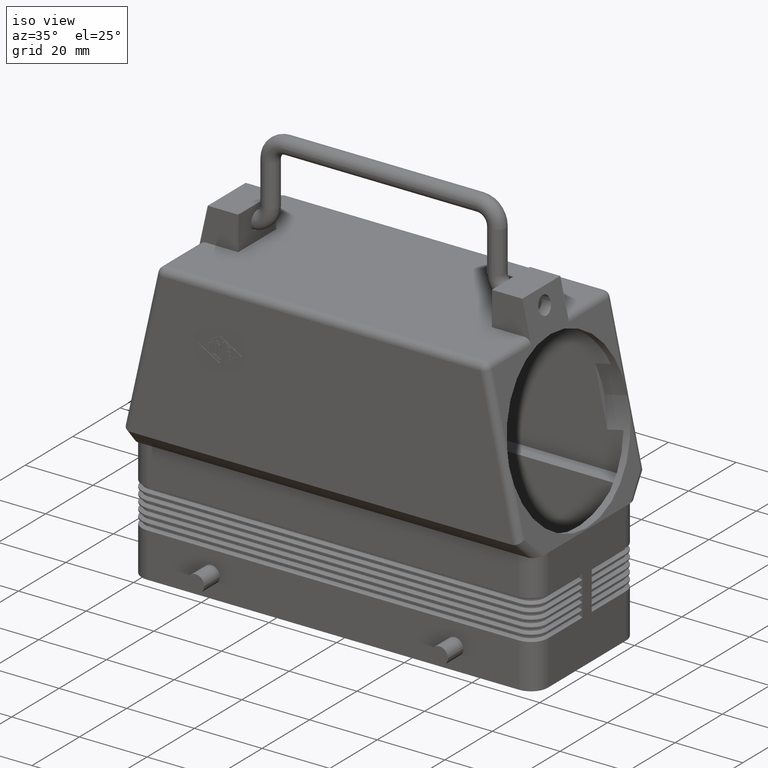
[diagram: clean part render]
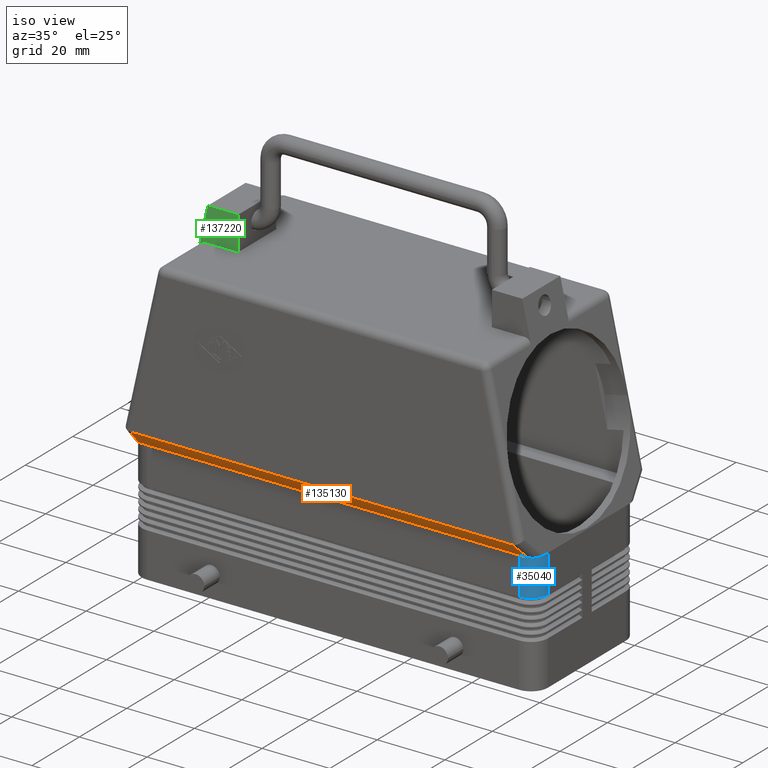
[diagram: same view with three faces highlighted in distinct colors, each labeled with its STEP entity id]
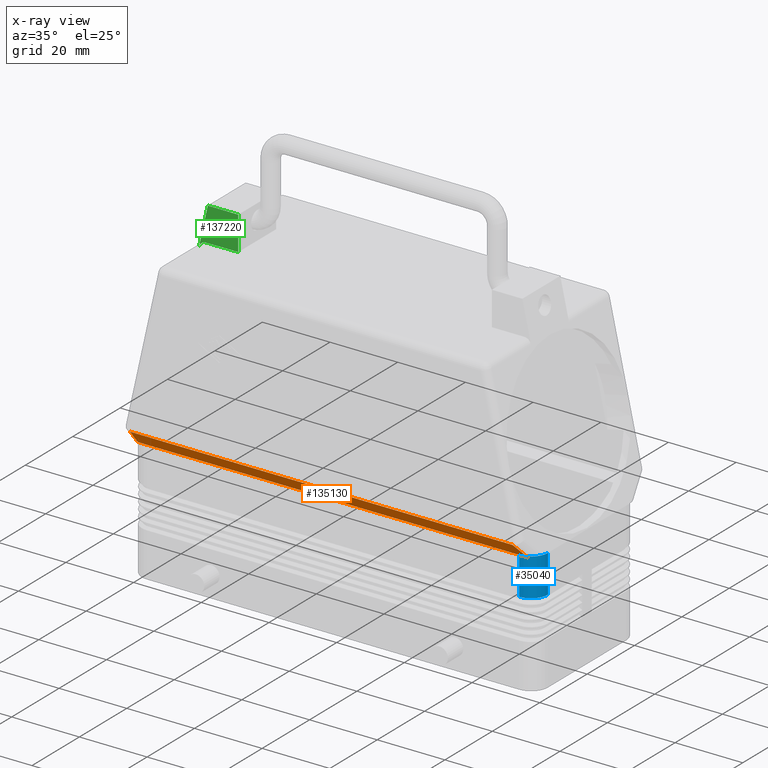
[diagram: x-ray of the same camera — body ghosted, the three highlighted faces saturated]
A machine part, iso view with three faces highlighted in distinct colors.
The next image is the same camera in x-ray (body ghosted, the three faces saturated) — at least one of them is partly hidden behind the body in this view.
Their STEP definitions:

[orange] entity #135130 — the highlighted planar face has unit normal (-0, -0.7071, -0.7071).
#7950=CARTESIAN_POINT('',(-56.5294440595409,-26.5,41.));
#7960=VERTEX_POINT('',#7950);
#8010=CARTESIAN_POINT('',(-57.6379173727556,-21.5,36.));
#8020=DIRECTION('',(0.154870435200398,-0.698575389024276,
0.698575389024277));
#8030=VECTOR('',#8020,7.15742363466836);
#8040=LINE('',#8010,#8030);
#8050=CARTESIAN_POINT('',(-57.6379173727556,-21.5,36.));
#8060=VERTEX_POINT('',#8050);
#8070=EDGE_CURVE('',#8060,#7960,#8040,.T.);
#12720=CARTESIAN_POINT('',(56.5294440595409,-26.5,41.));
#12730=DIRECTION('',(0.154870435200397,0.698575389024276,
-0.698575389024277));
#12740=VECTOR('',#12730,7.15742363466836);
#12750=LINE('',#12720,#12740);
#12760=CARTESIAN_POINT('',(56.5294440595409,-26.5,41.));
#12770=VERTEX_POINT('',#12760);
#12780=CARTESIAN_POINT('',(57.6379173727556,-21.5,36.));
#12790=VERTEX_POINT('',#12780);
#12800=EDGE_CURVE('',#12770,#12790,#12750,.T.);
#33850=CARTESIAN_POINT('',(-55.,-21.5,36.));
#33860=VERTEX_POINT('',#33850);
#34910=CARTESIAN_POINT('',(55.,-21.5,36.));
#34920=VERTEX_POINT('',#34910);
#53810=CARTESIAN_POINT('',(56.5294440595409,-26.5,41.));
#53820=DIRECTION('',(-1.,0.,0.));
#53830=VECTOR('',#53820,113.058888119082);
#53840=LINE('',#53810,#53830);
#53850=EDGE_CURVE('',#12770,#7960,#53840,.T.);
#60420=CARTESIAN_POINT('',(-55.,-21.5,36.));
#60430=DIRECTION('',(1.,0.,0.));
#60440=VECTOR('',#60430,110.);
#60450=LINE('',#60420,#60440);
#60460=EDGE_CURVE('',#33860,#34920,#60450,.T.);
#77030=CARTESIAN_POINT('',(55.,-21.5,36.));
#77040=DIRECTION('',(1.,0.,0.));
#77050=VECTOR('',#77040,2.6379173727556);
#77060=LINE('',#77030,#77050);
#77070=EDGE_CURVE('',#34920,#12790,#77060,.T.);
#134950=CARTESIAN_POINT('',(-30.,-24.,38.5));
#134960=DIRECTION('',(-0.,-0.707106781186548,-0.707106781186547));
#134970=DIRECTION('',(-1.,0.,0.));
#134980=AXIS2_PLACEMENT_3D('',#134950,#134960,#134970);
#134990=PLANE('',#134980);
#135000=ORIENTED_EDGE('',*,*,#53850,.T.);
#135010=ORIENTED_EDGE('',*,*,#12800,.F.);
#135020=ORIENTED_EDGE('',*,*,#77070,.T.);
#135030=ORIENTED_EDGE('',*,*,#60460,.T.);
#135040=CARTESIAN_POINT('',(-57.6379173727556,-21.5,36.));
#135050=DIRECTION('',(1.,0.,0.));
#135060=VECTOR('',#135050,2.63791737275562);
#135070=LINE('',#135040,#135060);
#135080=EDGE_CURVE('',#8060,#33860,#135070,.T.);
#135090=ORIENTED_EDGE('',*,*,#135080,.T.);
#135100=ORIENTED_EDGE('',*,*,#8070,.F.);
#135110=EDGE_LOOP('',(#135100,#135090,#135030,#135020,#135010,#135000));
#135120=FACE_OUTER_BOUND('',#135110,.T.);
#135130=ADVANCED_FACE('',(#135120),#134990,.T.);

[blue] entity #35040 — the highlighted cylindrical surface (edge-blend (fillet) strip) has radius 5 mm, axis along (-0, 0, -1).
#34630=CARTESIAN_POINT('',(55.,-16.5,9.));
#34640=DIRECTION('',(-2.467162E-16,0.,-1.));
#34650=DIRECTION('',(0.707106781186548,-0.707106781186548,
-1.74454698048577E-16));
#34660=AXIS2_PLACEMENT_3D('',#34630,#34640,#34650);
#34670=CYLINDRICAL_SURFACE('',#34660,5.);
#34680=CARTESIAN_POINT('',(60.,-16.5,24.8273502691896));
#34690=DIRECTION('',(0.,0.,1.));
#34700=VECTOR('',#34690,11.1726497308104);
#34710=LINE('',#34680,#34700);
#34720=CARTESIAN_POINT('',(60.,-16.5,24.8273502691896));
#34730=VERTEX_POINT('',#34720);
#34740=CARTESIAN_POINT('',(60.,-16.5,36.));
#34750=VERTEX_POINT('',#34740);
#34760=EDGE_CURVE('',#34730,#34750,#34710,.T.);
#34770=ORIENTED_EDGE('',*,*,#34760,.T.);
#34780=CARTESIAN_POINT('',(55.,-16.5,24.8273502691896));
#34790=DIRECTION('',(2.220446E-16,-2.220446E-16,1.));
#34800=DIRECTION('',(0.707106781186548,-0.707106781186548,
-3.14018484771709E-16));
#34810=AXIS2_PLACEMENT_3D('',#34780,#34790,#34800);
#34820=CIRCLE('',#34810,5.);
#34830=CARTESIAN_POINT('',(55.,-21.5,24.8273502691896));
#34840=VERTEX_POINT('',#34830);
#34850=EDGE_CURVE('',#34840,#34730,#34820,.T.);
#34860=ORIENTED_EDGE('',*,*,#34850,.T.);
#34870=CARTESIAN_POINT('',(55.,-21.5,36.));
#34880=DIRECTION('',(0.,0.,-1.));
#34890=VECTOR('',#34880,11.1726497308104);
#34900=LINE('',#34870,#34890);
#34910=CARTESIAN_POINT('',(55.,-21.5,36.));
#34920=VERTEX_POINT('',#34910);
#34930=EDGE_CURVE('',#34920,#34840,#34900,.T.);
#34940=ORIENTED_EDGE('',*,*,#34930,.T.);
#34950=CARTESIAN_POINT('',(55.,-16.5,36.));
#34960=DIRECTION('',(-2.220446E-16,2.220446E-16,-1.));
#34970=DIRECTION('',(0.707106781186548,-0.707106781186548,
-3.14018484771709E-16));
#34980=AXIS2_PLACEMENT_3D('',#34950,#34960,#34970);
#34990=CIRCLE('',#34980,5.);
#35000=EDGE_CURVE('',#34750,#34920,#34990,.T.);
#35010=ORIENTED_EDGE('',*,*,#35000,.T.);
#35020=EDGE_LOOP('',(#35010,#34940,#34860,#34770));
#35030=FACE_OUTER_BOUND('',#35020,.T.);
#35040=ADVANCED_FACE('',(#35030),#34670,.T.);

[green] entity #137220 — the highlighted planar face has unit normal (-0, 1, 0).
#14630=CARTESIAN_POINT('',(-49.0409945161068,-8.,85.4328792278762));
#14640=VERTEX_POINT('',#14630);
#14670=CARTESIAN_POINT('',(-47.088402501867,-8.,85.));
#14680=DIRECTION('',(0.,-1.,0.));
#14690=DIRECTION('',(-0.625923472184062,0.,0.77988448309288));
#14700=AXIS2_PLACEMENT_3D('',#14670,#14680,#14690);
#14710=CIRCLE('',#14700,2.);
#14720=CARTESIAN_POINT('',(-47.0884025018669,-8.,87.));
#14730=VERTEX_POINT('',#14720);
#14740=EDGE_CURVE('',#14730,#14640,#14710,.T.);
#63810=CARTESIAN_POINT('',(-37.4766255787807,-8.,86.9999999999999));
#63820=VERTEX_POINT('',#63810);
#63850=CARTESIAN_POINT('',(-37.4766255787807,-8.,86.9999999999999));
#63860=DIRECTION('',(0.,0.,1.));
#63870=VECTOR('',#63860,10.0000000000001);
#63880=LINE('',#63850,#63870);
#63890=CARTESIAN_POINT('',(-37.4766255787807,-8.,97.));
#63900=VERTEX_POINT('',#63890);
#63910=EDGE_CURVE('',#63820,#63900,#63880,.T.);
#82610=CARTESIAN_POINT('',(-37.4766255787807,-8.,86.9999999999999));
#82620=DIRECTION('',(-1.,0.,0.));
#82630=VECTOR('',#82620,9.61177692308627);
#82640=LINE('',#82610,#82630);
#82650=EDGE_CURVE('',#63820,#14730,#82640,.T.);
#89700=CARTESIAN_POINT('',(-46.4766255787807,-8.,97.));
#89710=VERTEX_POINT('',#89700);
#89740=CARTESIAN_POINT('',(-46.4766255787807,-8.,97.));
#89750=DIRECTION('',(-0.216439613938103,0.,-0.976296007119933));
#89760=VECTOR('',#89750,11.8479648464882);
#89770=LINE('',#89740,#89760);
#89780=EDGE_CURVE('',#89710,#14640,#89770,.T.);
#137050=CARTESIAN_POINT('',(-43.2588100474437,-8.,91.2164396139381));
#137060=DIRECTION('',(-0.,1.,0.));
#137070=DIRECTION('',(1.,0.,0.));
#137080=AXIS2_PLACEMENT_3D('',#137050,#137060,#137070);
#137090=PLANE('',#137080);
#137100=ORIENTED_EDGE('',*,*,#89780,.T.);
#137110=CARTESIAN_POINT('',(-37.4766255787807,-8.,97.));
#137120=DIRECTION('',(-1.,0.,0.));
#137130=VECTOR('',#137120,9.00000000000001);
#137140=LINE('',#137110,#137130);
#137150=EDGE_CURVE('',#63900,#89710,#137140,.T.);
#137160=ORIENTED_EDGE('',*,*,#137150,.T.);
#137170=ORIENTED_EDGE('',*,*,#63910,.T.);
#137180=ORIENTED_EDGE('',*,*,#82650,.F.);
#137190=ORIENTED_EDGE('',*,*,#14740,.F.);
#137200=EDGE_LOOP('',(#137190,#137180,#137170,#137160,#137100));
#137210=FACE_OUTER_BOUND('',#137200,.T.);
#137220=ADVANCED_FACE('',(#137210),#137090,.F.);